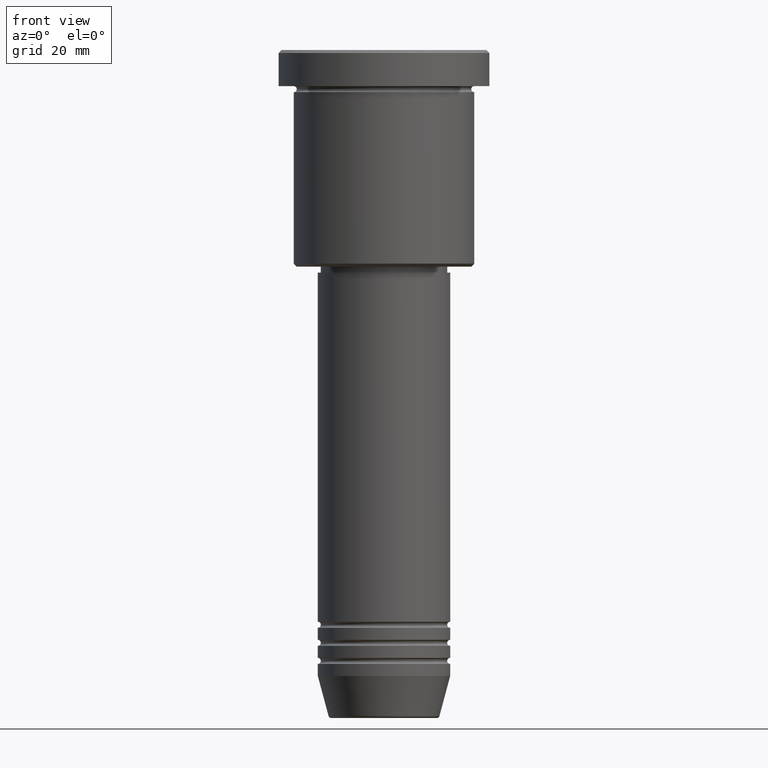
[diagram: clean part render]
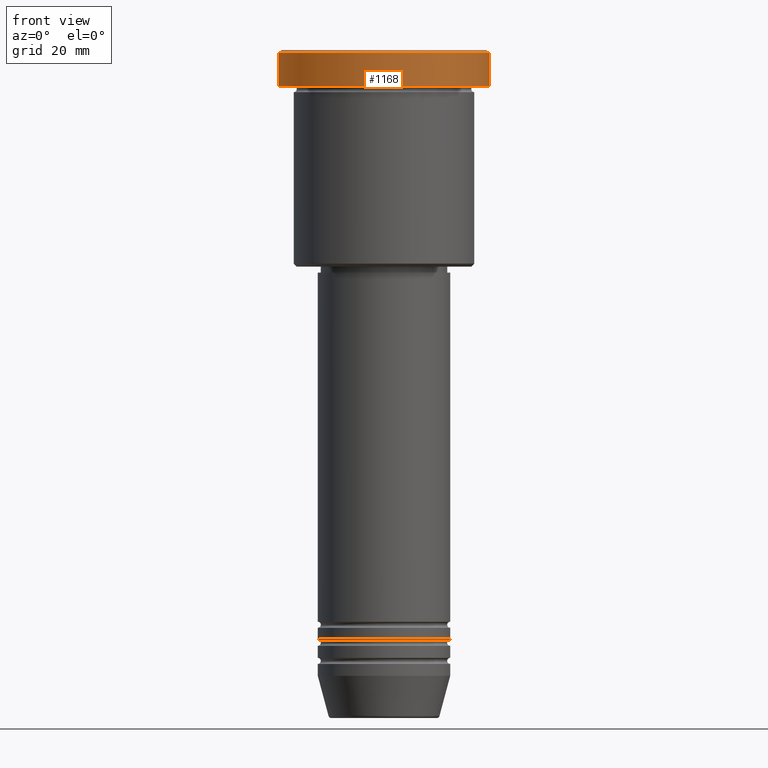
[diagram: same view with one face highlighted and labeled with its STEP entity id]
A machine part, front view. The second image highlights one B-rep face of the part: STEP entity #1168.
In plain terms, the highlighted cylindrical surface (partial cylindrical patch) has radius 17.5 mm, axis along (-0, -0, 1).
Its self-contained STEP definition (entity closure, byte-faithful):
#27 = AXIS2_PLACEMENT_3D ( 'NONE', #560, #104, #850 ) ;
#39 = CARTESIAN_POINT ( 'NONE',  ( 17.50000000000000000, 0.000000000000000000, 0.000000000000000000 ) ) ;
#99 = VECTOR ( 'NONE', #1142, 1000.000000000000000 ) ;
#100 = LINE ( 'NONE', #929, #1066 ) ;
#103 = VERTEX_POINT ( 'NONE', #768 ) ;
#104 = DIRECTION ( 'NONE',  ( -0.000000000000000000, -0.000000000000000000, 1.000000000000000000 ) ) ;
#167 = VERTEX_POINT ( 'NONE', #1117 ) ;
#171 = CIRCLE ( 'NONE', #188, 17.50000000000000000 ) ;
#188 = AXIS2_PLACEMENT_3D ( 'NONE', #355, #908, #1165 ) ;
#206 = CARTESIAN_POINT ( 'NONE',  ( 0.000000000000000000, 0.000000000000000000, -0.5000000000000281997 ) ) ;
#266 = VERTEX_POINT ( 'NONE', #384 ) ;
#290 = EDGE_CURVE ( 'NONE', #1091, #266, #648, .T. ) ;
#355 = CARTESIAN_POINT ( 'NONE',  ( 0.000000000000000000, 0.000000000000000000, -5.999999999999995559 ) ) ;
#357 = ORIENTED_EDGE ( 'NONE', *, *, #593, .F. ) ;
#369 = DIRECTION ( 'NONE',  ( -0.000000000000000000, -0.000000000000000000, 1.000000000000000000 ) ) ;
#384 = CARTESIAN_POINT ( 'NONE',  ( -17.50000000000000000, 2.143131898507868248E-15, -0.5000000000000281997 ) ) ;
#533 = EDGE_CURVE ( 'NONE', #103, #167, #171, .T. ) ;
#560 = CARTESIAN_POINT ( 'NONE',  ( 0.000000000000000000, 0.000000000000000000, 0.000000000000000000 ) ) ;
#590 = AXIS2_PLACEMENT_3D ( 'NONE', #206, #1069, #974 ) ;
#593 = EDGE_CURVE ( 'NONE', #103, #266, #100, .T. ) ;
#648 = CIRCLE ( 'NONE', #590, 17.50000000000000000 ) ;
#732 = FACE_OUTER_BOUND ( 'NONE', #993, .T. ) ;
#768 = CARTESIAN_POINT ( 'NONE',  ( -17.50000000000000000, 2.143131898507868248E-15, -5.999999999999995559 ) ) ;
#844 = EDGE_CURVE ( 'NONE', #167, #1091, #951, .T. ) ;
#850 = DIRECTION ( 'NONE',  ( 1.000000000000000000, 0.000000000000000000, 0.000000000000000000 ) ) ;
#892 = ORIENTED_EDGE ( 'NONE', *, *, #290, .T. ) ;
#908 = DIRECTION ( 'NONE',  ( -0.000000000000000000, -0.000000000000000000, 1.000000000000000000 ) ) ;
#911 = ORIENTED_EDGE ( 'NONE', *, *, #533, .T. ) ;
#916 = CYLINDRICAL_SURFACE ( 'NONE', #27, 17.50000000000000000 ) ;
#929 = CARTESIAN_POINT ( 'NONE',  ( -17.50000000000000000, 2.143131898507868248E-15, 0.000000000000000000 ) ) ;
#937 = CARTESIAN_POINT ( 'NONE',  ( 17.50000000000000000, 0.000000000000000000, -0.5000000000000281997 ) ) ;
#951 = LINE ( 'NONE', #39, #99 ) ;
#974 = DIRECTION ( 'NONE',  ( 1.000000000000000000, 0.000000000000000000, 0.000000000000000000 ) ) ;
#993 = EDGE_LOOP ( 'NONE', ( #357, #911, #1074, #892 ) ) ;
#1066 = VECTOR ( 'NONE', #369, 1000.000000000000000 ) ;
#1069 = DIRECTION ( 'NONE',  ( 0.000000000000000000, 0.000000000000000000, -1.000000000000000000 ) ) ;
#1074 = ORIENTED_EDGE ( 'NONE', *, *, #844, .T. ) ;
#1091 = VERTEX_POINT ( 'NONE', #937 ) ;
#1117 = CARTESIAN_POINT ( 'NONE',  ( 17.50000000000000000, 0.000000000000000000, -5.999999999999995559 ) ) ;
#1142 = DIRECTION ( 'NONE',  ( -0.000000000000000000, -0.000000000000000000, 1.000000000000000000 ) ) ;
#1165 = DIRECTION ( 'NONE',  ( 1.000000000000000000, 0.000000000000000000, 0.000000000000000000 ) ) ;
#1168 = ADVANCED_FACE ( 'NONE', ( #732 ), #916, .T. ) ;